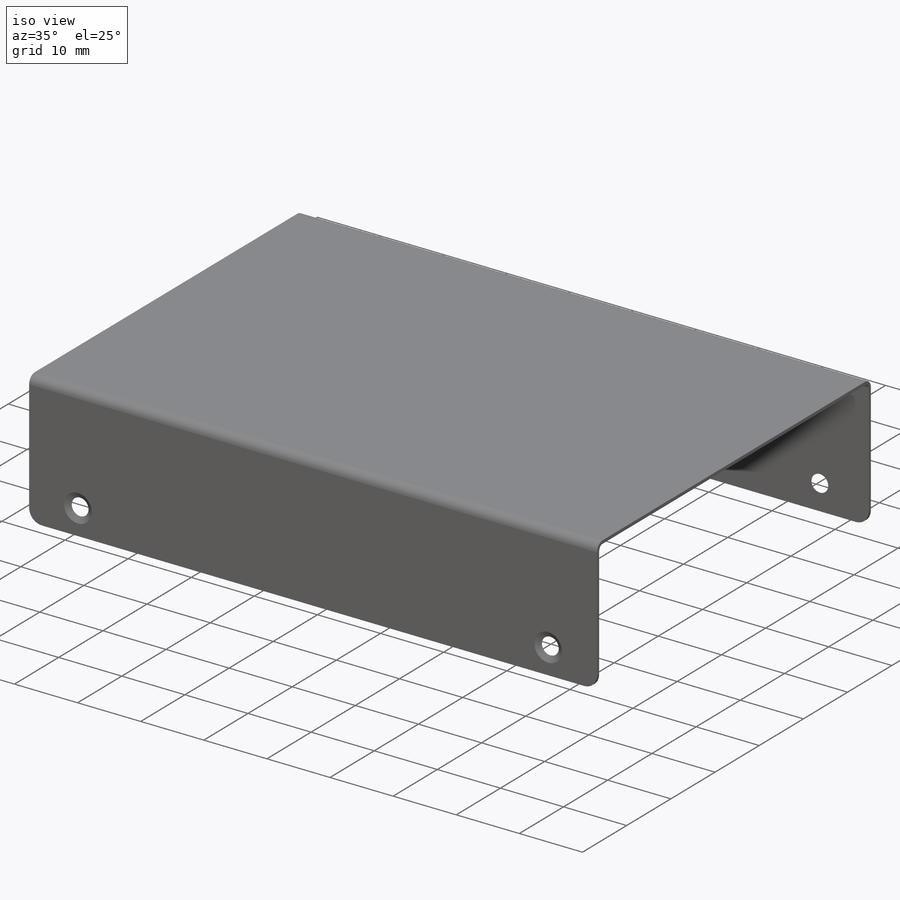
[diagram: iso view]
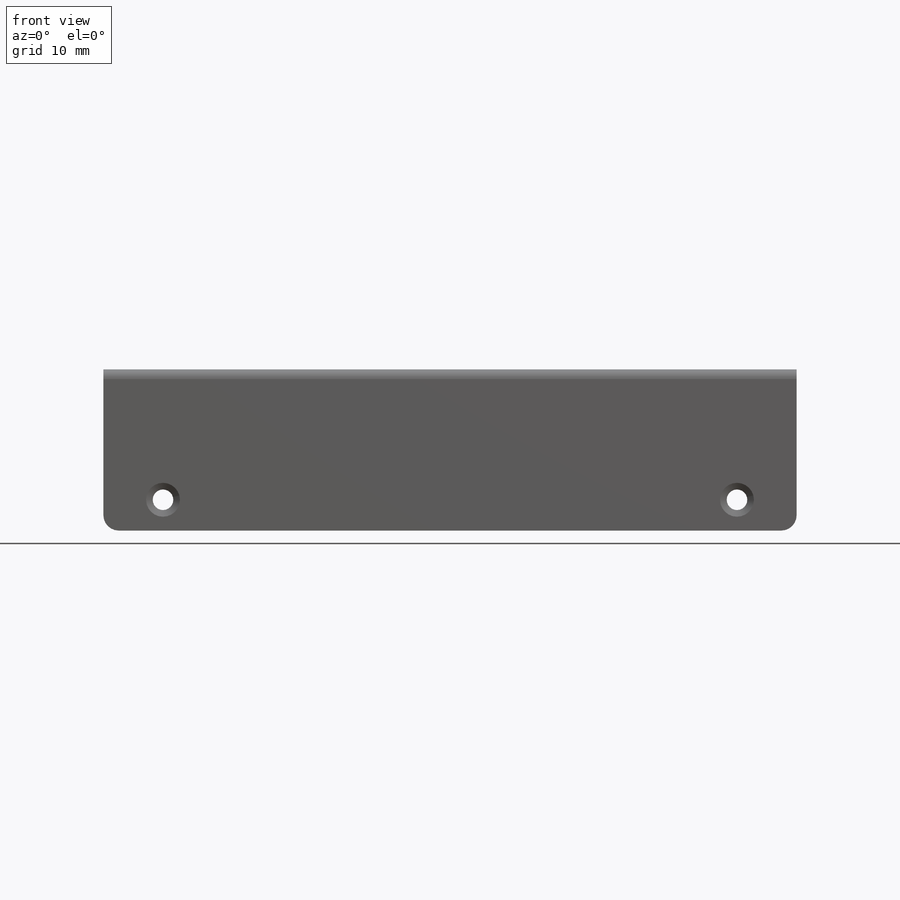
[diagram: front view]
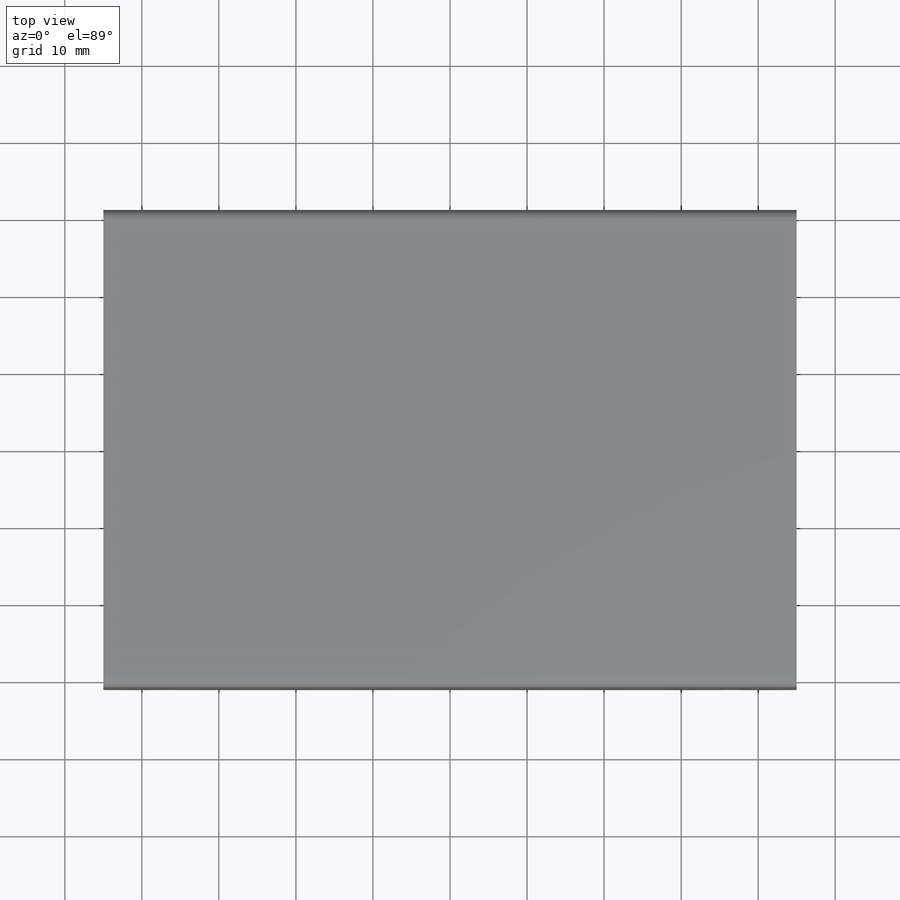
[diagram: top view]
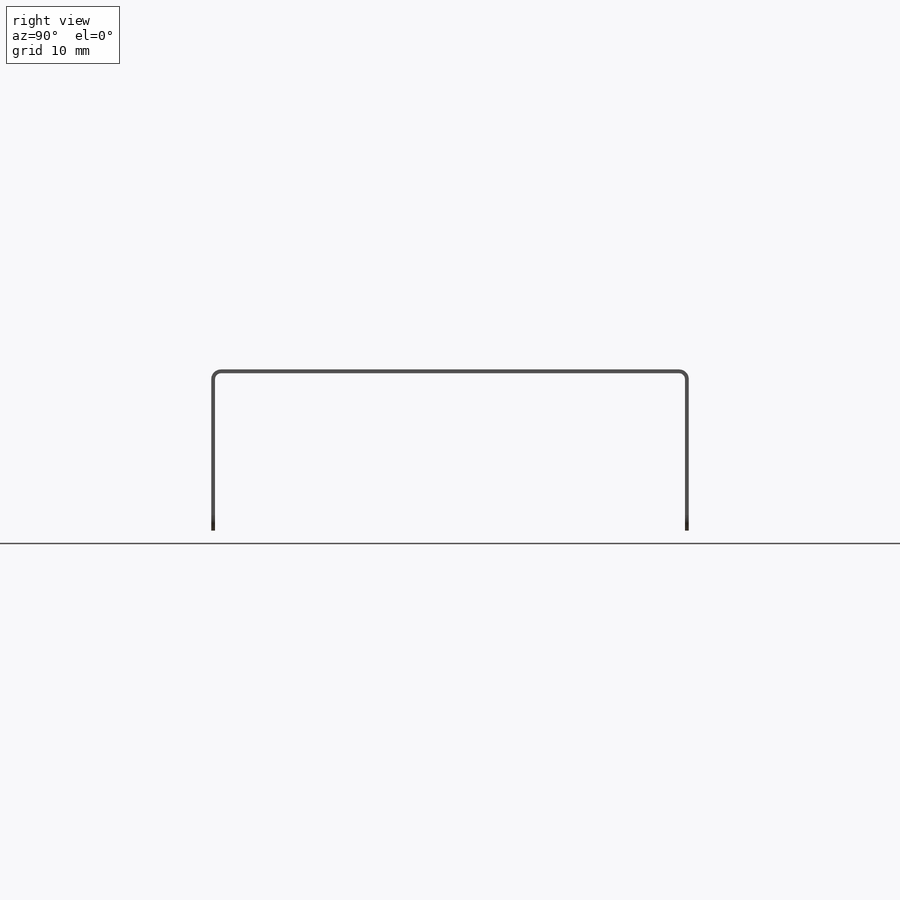
[diagram: right view]
SOLIDWORKS PART (.sldprt)
format: sldprt  version: not decoded by parser v0  size: 367,616 bytes
history: native  units: mm
features: sketch x17, sheet_metal_op x6, fillet x4, hole x2, material x1 + 6 further entries (+13 scaffold rows collapsed; 4 parser-record rows omitted)
feature tree (53):
  scaffold x13  (default folders/planes/origin — collapsed)
  material  "Material <not specified>"
  sketch  "Sketch1"  dims[c1.D1=60.99mm c1.D2=89.98mm c2.D1=~0.75946mm c2.D2=0.48 c2.D3=0.0mm c2.D6=500.0mm]
  sheet_metal_op  "Base-Flange1"
  sketch  "Sketch10"
  sketch  "Sketch11"  dims[D1=~0.75946mm D4=90.0deg D5=1.0 D8=0.25mm D9=0.25mm]
  sheet_metal_op  "EdgeBend2"
  hole  "CSK for M2 Flat Head Machine Screw1"  Diameter=2.4mm Depth=0.5mm
  sketch  "Sketch17"  dims[c1.D1=8.0mm c1.D2=4.0mm c2.D1=15.0mm c2.D3=74.5mm]
  sketch  "Sketch14"  dims[hole-wizard template sketch: 55 standard entries collapsed; hole parameters kept: c17.Thru Hole Depth=0.5mm c17.Near C'Sink Dia.=4.4mm c17.D4=~3.666174mm c17.Near C'Sink Angle=120.0deg]
  hole  "CSK for M2 Flat Head Machine Screw2"  Diameter=2.4mm Depth=0.5mm
  sketch  "Sketch21"
  sketch  "Sketch20"  dims[hole-wizard template sketch: 55 standard entries collapsed; hole parameters kept: c17.Thru Hole Depth=0.5mm c17.Near C'Sink Dia.=4.4mm c17.D4=~3.666174mm c17.Near C'Sink Angle=120.0deg]
  fillet  "Fillet1"  Radius=2mm
  sketch  "Bend-Lines1"
  sketch  "Bounding-Box1"
  sheet_metal_op  "Sheet-Metal(1)"
  "Flat-Pattern(1)"
  sketch  "Bend-Lines2"
  sketch  "Bounding-Box2"
  parser-record x4  (decoder bookkeeping rows leaked as tree rows — omitted from the tree; the rows remain in map.json)
  fillet  "Sheet-Metal(2)"  Radius=0.75946mm
  sheet_metal_op  "Flat-Pattern(1)"
  sketch  "Bend-Lines3"
  sketch  "Bounding-Box3"
  "Flatten-<EdgeBend2>1"
  fillet  "Sheet-Metal(3)"  Radius=0.75946mm
  sheet_metal_op  "Flat-Pattern(1)"
  sketch  "Bend-Lines4"
  sketch  "Bounding-Box4"
  "Flatten-<EdgeBend1>2"
  "Flatten-<EdgeBend2>2"
  fillet  "Sheet-Metal(4)"  Radius=0.75946mm
  sheet_metal_op  "Flat-Pattern(1)"
  sketch  "Bend-Lines5"
  sketch  "Bounding-Box5"
  "Flatten-<EdgeBend1>3"
  "Flatten-<EdgeBend2>3"
decode coverage: 11 of 29 modeling features carry decoded parameters; 6 rows unclassified (native names shown)
note: ~ marks probable driven/reference dimensions
note: suppression state not decoded; provenance and decode notes live in map.json
